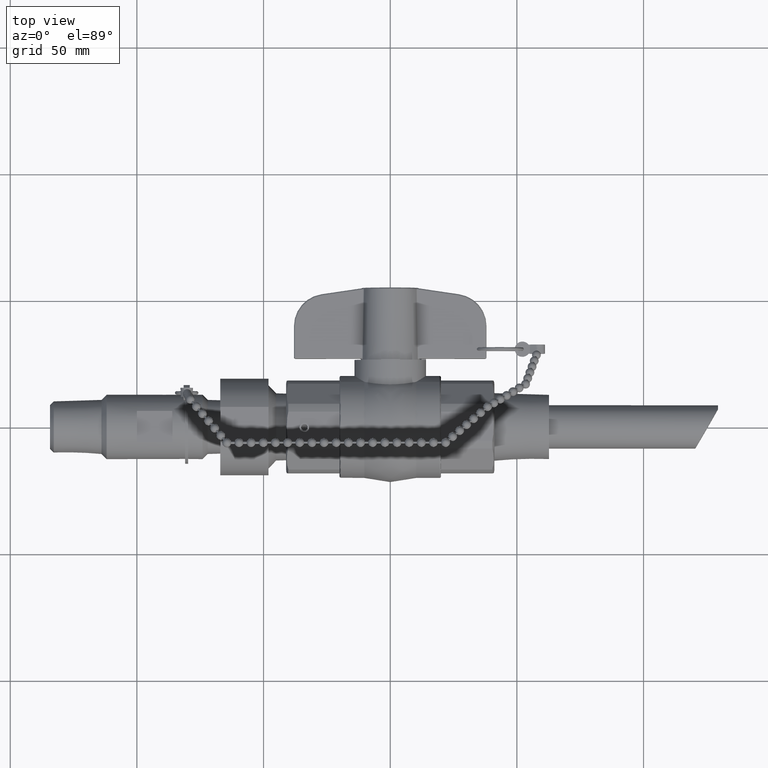
[diagram: clean part render]
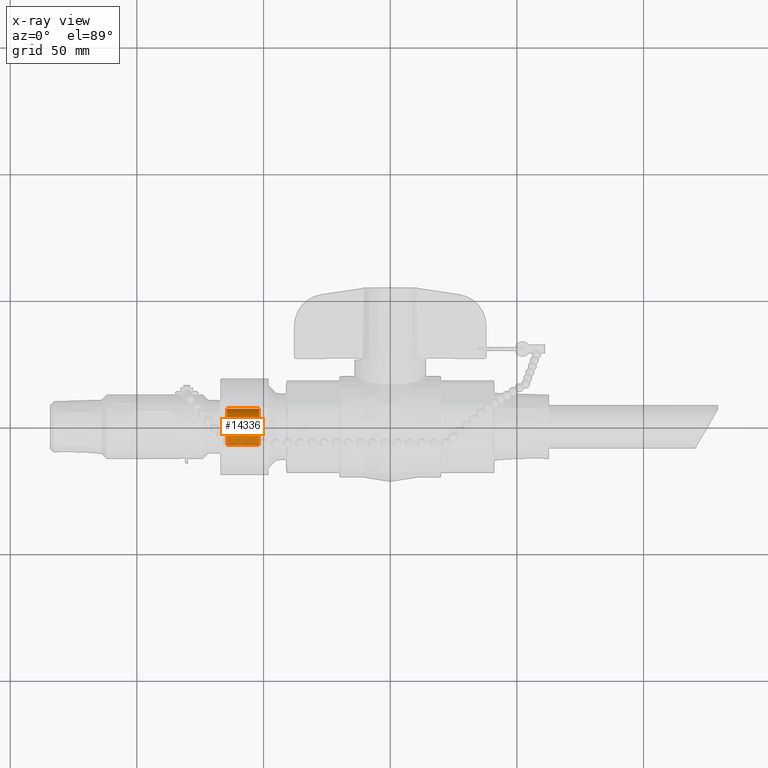
[diagram: x-ray — body ghosted, one internal face saturated and labeled with its STEP entity id]
A machine part, top view, then the same camera in x-ray: the body is ghosted and one INTERNAL B-rep face — a face not visible from any outside direction — is saturated and labeled: STEP entity #14336.
In plain terms, the highlighted cylindrical surface (bore or boss wall) has radius 7.112 mm, axis along (1, -0, 0).
Its self-contained STEP definition (entity closure, byte-faithful):
#14274=CARTESIAN_POINT('',(-2.037000000000000,0.280000000000002,-5.430427E-016));
#14275=VERTEX_POINT('',#14274);
#14276=CARTESIAN_POINT('',(-2.037000000000000,2.492252E-016,-5.430427E-016));
#14277=DIRECTION('',(1.0,0.0,0.0));
#14278=DIRECTION('',(0.0,1.0,0.0));
#14279=AXIS2_PLACEMENT_3D('',#14276,#14277,#14278);
#14280=CIRCLE('',#14279,0.280000000000002);
#14281=EDGE_CURVE('',#14275,#14275,#14280,.T.);
#14317=CARTESIAN_POINT('',(-2.287000000000000,2.492252E-016,-5.788380E-016));
#14318=DIRECTION('',(1.0,-1.091552E-030,1.431812E-016));
#14319=DIRECTION('',(0.0,1.0,0.0));
#14320=AXIS2_PLACEMENT_3D('',#14317,#14318,#14319);
#14321=CYLINDRICAL_SURFACE('',#14320,0.280000000000002);
#14322=CARTESIAN_POINT('',(-2.537000000000000,0.280000000000002,-6.146333E-016));
#14323=VERTEX_POINT('',#14322);
#14324=CARTESIAN_POINT('',(-2.537000000000000,2.492252E-016,-6.146333E-016));
#14325=DIRECTION('',(1.0,0.0,0.0));
#14326=DIRECTION('',(0.0,1.0,0.0));
#14327=AXIS2_PLACEMENT_3D('',#14324,#14325,#14326);
#14328=CIRCLE('',#14327,0.280000000000001);
#14329=EDGE_CURVE('',#14323,#14323,#14328,.T.);
#14330=ORIENTED_EDGE('',*,*,#14329,.F.);
#14331=EDGE_LOOP('',(#14330));
#14332=FACE_OUTER_BOUND('',#14331,.T.);
#14333=ORIENTED_EDGE('',*,*,#14281,.T.);
#14334=EDGE_LOOP('',(#14333));
#14335=FACE_BOUND('',#14334,.T.);
#14336=ADVANCED_FACE('',(#14332,#14335),#14321,.F.);